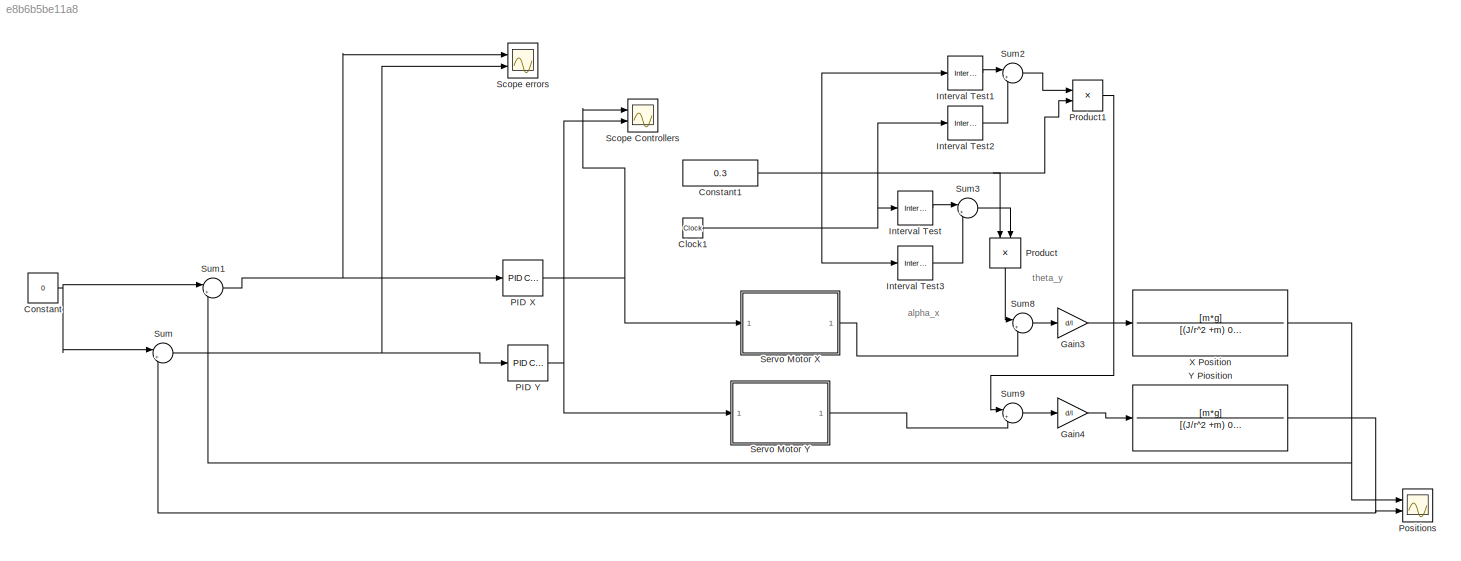
MODEL slx_e8b6b5be11a8
KIND model
CONFIG AbsTol = auto
CONFIG EnableMultiTasking = off
CONFIG FixedStep = 1e-3
CONFIG InitFcn = Param
CONFIG MaxStep = auto
CONFIG MinStep = auto
CONFIG RelTol = 1e-1
CONFIG SampleTimeConstraint = Unconstrained
CONFIG SolverName = FixedStepAuto
CONFIG StartTime = 0.0
CONFIG StopTime = 20
BLOCK [Clock] Clock1
  Decimation = 1
BLOCK [Constant] Constant
  Value = 0
BLOCK [Constant] Constant1
  Value = 0.3
BLOCK [Gain] Gain3
  Gain = d/l
BLOCK [Gain] Gain4
  Gain = d/l
BLOCK [Reference] Interval Test  REF=simulink/Logic and Bit
Operations/Interval Test
  Ports = [1, 1]
  SourceBlock = simulink/Logic and Bit\nOperations/Interval Test
  SourceProductBaseCode = SL
  SourceType = Interval Test
BLOCK [Reference] Interval Test1  REF=simulink/Logic and Bit
Operations/Interval Test
  Ports = [1, 1]
  SourceBlock = simulink/Logic and Bit\nOperations/Interval Test
  SourceProductBaseCode = SL
  SourceType = Interval Test
BLOCK [Reference] Interval Test2  REF=simulink/Logic and Bit
Operations/Interval Test
  Ports = [1, 1]
  SourceBlock = simulink/Logic and Bit\nOperations/Interval Test
  SourceProductBaseCode = SL
  SourceType = Interval Test
BLOCK [Reference] Interval Test3  REF=simulink/Logic and Bit
Operations/Interval Test
  Ports = [1, 1]
  SourceBlock = simulink/Logic and Bit\nOperations/Interval Test
  SourceProductBaseCode = SL
  SourceType = Interval Test
BLOCK [Reference] PID X  REF=pid_lib/PID Controller
  Ports = [1, 1]
  SourceBlock = pid_lib/PID Controller
  SourceProductBaseCode = SL
  SourceType = PID 1dof
BLOCK [Reference] PID Y  REF=pid_lib/PID Controller
  Ports = [1, 1]
  SourceBlock = pid_lib/PID Controller
  SourceProductBaseCode = SL
  SourceType = PID 1dof
BLOCK [Scope] Positions
  Floating = off
  NumInputPorts = 2
  Ports = [2]
  ScopeSpecificationString = Simulink.scopes.TimeScopeBlockCfg('CurrentConfiguration', extmgr.ConfigurationSet(extmgr.Configuration('Core','General UI',true),extmgr.Configuration('Core','Source UI',true),extmgr.Configuration('Sources','WiredSimulink',true,'DataLoggingVariableName','ScopeData1'),extmgr.Configuration('Visuals','Time Domain',true,'SerializedDisplays',{struct('MinYLimReal','-0.00665','MaxYLimReal','0.02616','YLab...<+1479ch>
BLOCK [Product] Product
  NameLocation = left
  Ports = [2, 1]
BLOCK [Product] Product1
  Ports = [2, 1]
BLOCK [Scope] Scope Controllers
  Floating = off
  NumInputPorts = 2
  Ports = [2]
  ScopeSpecificationString = Simulink.scopes.TimeScopeBlockCfg('CurrentConfiguration', extmgr.ConfigurationSet(extmgr.Configuration('Core','General UI',true),extmgr.Configuration('Core','Source UI',true),extmgr.Configuration('Sources','WiredSimulink',true,'DataLoggingVariableName','ScopeData4'),extmgr.Configuration('Visuals','Time Domain',true,'SerializedDisplays',{struct('MinYLimReal','-1.0227','MaxYLimReal','0.47737','YLabe...<+1468ch>
BLOCK [Scope] Scope errors
  Floating = off
  NumInputPorts = 2
  Ports = [2]
  ScopeSpecificationString = Simulink.scopes.TimeScopeBlockCfg('CurrentConfiguration', extmgr.ConfigurationSet(extmgr.Configuration('Core','General UI',true),extmgr.Configuration('Core','Source UI',true),extmgr.Configuration('Sources','WiredSimulink',true),extmgr.Configuration('Visuals','Time Domain',true,'SerializedDisplays',{struct('MinYLimReal','-0.10308','MaxYLimReal','0.01998','YLabelReal','','MinYLimMag','0.00000','MaxY...<+1401ch>
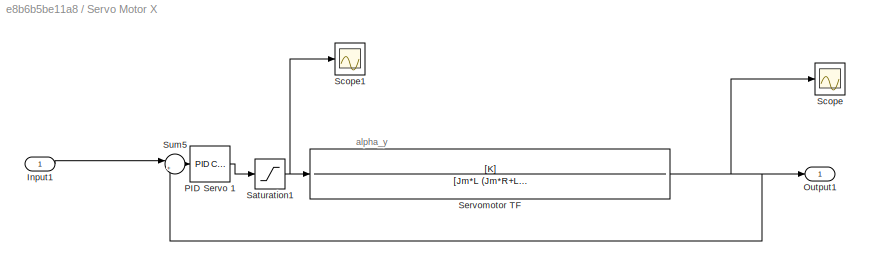
BLOCK [SubSystem] Servo Motor X
  Ports = [1, 1]
  RequestExecContextInheritance = off
BLOCK [Inport] Servo Motor X/Input1
BLOCK [Outport] Servo Motor X/Output1
BLOCK [Reference] Servo Motor X/PID Servo 1  REF=pid_lib/PID Controller
  Ports = [1, 1]
  SourceBlock = pid_lib/PID Controller
  SourceProductBaseCode = SL
  SourceType = PID 1dof
BLOCK [Saturate] Servo Motor X/Saturation1
  LowerLimit = -7.8
  UpperLimit = 7.8
BLOCK [Scope] Servo Motor X/Scope
  Floating = off
  NumInputPorts = 1
  Ports = [1]
  ScopeSpecificationString = Simulink.scopes.TimeScopeBlockCfg('CurrentConfiguration', extmgr.ConfigurationSet(extmgr.Configuration('Core','General UI',true),extmgr.Configuration('Core','Source UI',true),extmgr.Configuration('Sources','WiredSimulink',true,'DataLoggingVariableName','ScopeData1'),extmgr.Configuration('Visuals','Time Domain',true),extmgr.Configuration('Tools','Plot Navigation',true),extmgr.Configuration('Tools',...<+40ch>
BLOCK [Scope] Servo Motor X/Scope1
  Floating = off
  NumInputPorts = 1
  Ports = [1]
  ScopeSpecificationString = Simulink.scopes.TimeScopeBlockCfg('CurrentConfiguration', extmgr.ConfigurationSet(extmgr.Configuration('Core','General UI',true),extmgr.Configuration('Core','Source UI',true),extmgr.Configuration('Sources','WiredSimulink',true,'DataLoggingVariableName','ScopeData1'),extmgr.Configuration('Visuals','Time Domain',true,'SerializedDisplays',{struct('MinYLimReal','-9.75','MaxYLimReal','9.75','YLabelReal...<+1383ch>
BLOCK [TransferFcn] Servo Motor X/Servomotor TF
  Denominator = [Jm*L (Jm*R+L*c) (R*c+K^2) 0]
  Numerator = [K]
BLOCK [Sum] Servo Motor X/Sum5
  Inputs = |+-
  Ports = [2, 1]
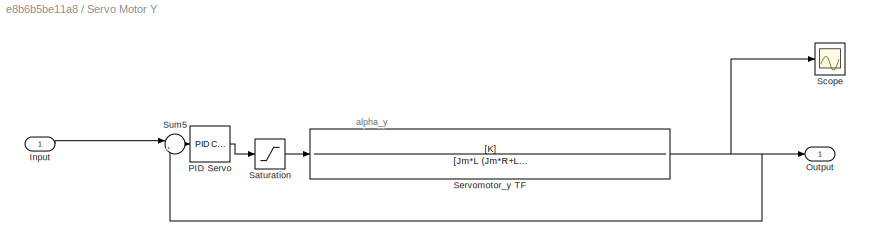
BLOCK [SubSystem] Servo Motor Y
  Ports = [1, 1]
  RequestExecContextInheritance = off
BLOCK [Inport] Servo Motor Y/Input
BLOCK [Outport] Servo Motor Y/Output
BLOCK [Reference] Servo Motor Y/PID Servo   REF=pid_lib/PID Controller
  Ports = [1, 1]
  SourceBlock = pid_lib/PID Controller
  SourceProductBaseCode = SL
  SourceType = PID 1dof
BLOCK [Saturate] Servo Motor Y/Saturation
  LowerLimit = -7.8
  UpperLimit = 7.8
BLOCK [Scope] Servo Motor Y/Scope
  Floating = off
  NumInputPorts = 1
  Ports = [1]
  ScopeSpecificationString = Simulink.scopes.TimeScopeBlockCfg('CurrentConfiguration', extmgr.ConfigurationSet(extmgr.Configuration('Core','General UI',true),extmgr.Configuration('Core','Source UI',true),extmgr.Configuration('Sources','WiredSimulink',true,'DataLoggingVariableName','ScopeData2'),extmgr.Configuration('Visuals','Time Domain',true),extmgr.Configuration('Tools','Plot Navigation',true),extmgr.Configuration('Tools',...<+40ch>
BLOCK [TransferFcn] Servo Motor Y/Servomotor_y TF
  Denominator = [Jm*L (Jm*R+L*c) (R*c+K^2) 0]
  Numerator = [K]
BLOCK [Sum] Servo Motor Y/Sum5
  Inputs = |+-
  Ports = [2, 1]
BLOCK [Sum] Sum
  Inputs = |+-
  Ports = [2, 1]
BLOCK [Sum] Sum1
  Inputs = |+-
  Ports = [2, 1]
BLOCK [Sum] Sum2
  Inputs = |++
  Ports = [2, 1]
BLOCK [Sum] Sum3
  Inputs = |++
  Ports = [2, 1]
BLOCK [Sum] Sum8
  Inputs = |++
  NameLocation = top
  Ports = [2, 1]
BLOCK [Sum] Sum9
  Inputs = |++
  Ports = [2, 1]
BLOCK [TransferFcn] X Position
  Denominator = [(J/r^2 +m) 0 0]
  Numerator = [m*g]
BLOCK [TransferFcn] Y Piosition
  Denominator = [(J/r^2 +m) 0 0]
  Numerator = [m*g]
ANNOTATION (root): alpha_x
ANNOTATION (root): theta_y
ANNOTATION Servo Motor X: alpha_y
ANNOTATION Servo Motor Y: alpha_y
NET Clock1:1 -> Interval Test1:1, Interval Test2:1, Interval Test3:1, Interval Test:1
NET Constant1:1 -> Product1:2, Product:1
NET Constant:1 -> Sum1:1, Sum:1
LINE Gain3:1 -> X Position:1
LINE Gain4:1 -> Y Piosition:1
LINE Interval Test1:1 -> Sum2:1
LINE Interval Test2:1 -> Sum2:2
LINE Interval Test3:1 -> Sum3:2
LINE Interval Test:1 -> Sum3:1
NET PID X:1 -> Scope Controllers:1, Servo Motor X:1
NET PID Y:1 -> Scope Controllers:2, Servo Motor Y:1
LINE Product1:1 -> Sum9:1
LINE Product:1 -> Sum8:1
LINE Servo Motor X/Input1:1 -> Servo Motor X/Sum5:1
LINE Servo Motor X/PID Servo 1:1 -> Servo Motor X/Saturation1:1
NET Servo Motor X/Saturation1:1 -> Servo Motor X/Scope1:1, Servo Motor X/Servomotor TF:1
NET Servo Motor X/Servomotor TF:1 -> Servo Motor X/Output1:1, Servo Motor X/Scope:1, Servo Motor X/Sum5:2
LINE Servo Motor X/Sum5:1 -> Servo Motor X/PID Servo 1:1
LINE Servo Motor X:1 -> Sum8:2
LINE Servo Motor Y/Input:1 -> Servo Motor Y/Sum5:1
LINE Servo Motor Y/PID Servo :1 -> Servo Motor Y/Saturation:1
LINE Servo Motor Y/Saturation:1 -> Servo Motor Y/Servomotor_y TF:1
NET Servo Motor Y/Servomotor_y TF:1 -> Servo Motor Y/Output:1, Servo Motor Y/Scope:1, Servo Motor Y/Sum5:2
LINE Servo Motor Y/Sum5:1 -> Servo Motor Y/PID Servo :1
LINE Servo Motor Y:1 -> Sum9:2
NET Sum1:1 -> PID X:1, Scope errors:1
LINE Sum2:1 -> Product1:1
LINE Sum3:1 -> Product:2
LINE Sum8:1 -> Gain3:1
LINE Sum9:1 -> Gain4:1
NET Sum:1 -> PID Y:1, Scope errors:2
NET X Position:1 -> Positions:1, Sum1:2
NET Y Piosition:1 -> Positions:2, Sum:2
note: NET lines group one-source signal fan-out (src -> all destinations, sorted); 1:1 wires keep LINE
